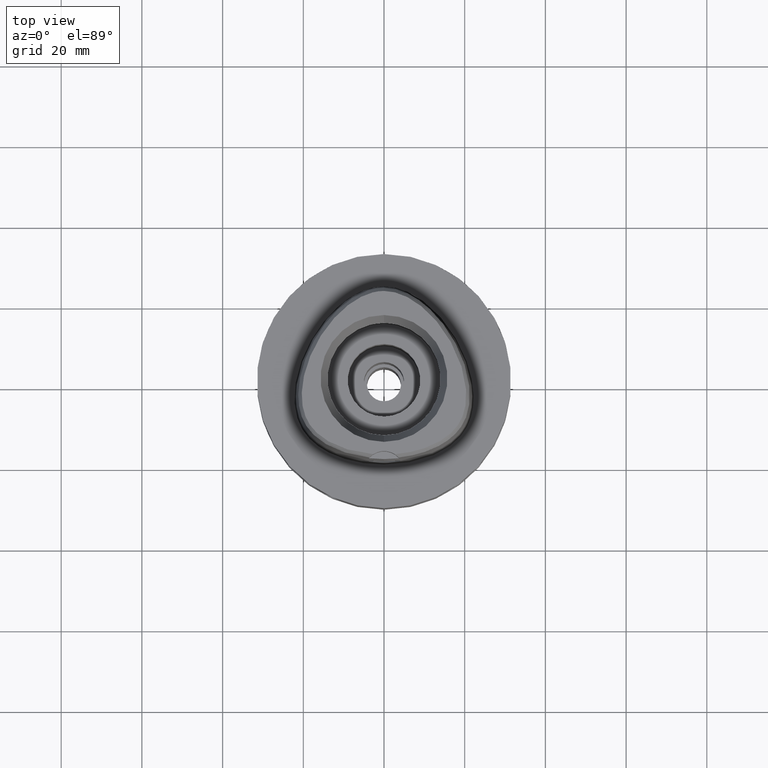
[diagram: clean part render]
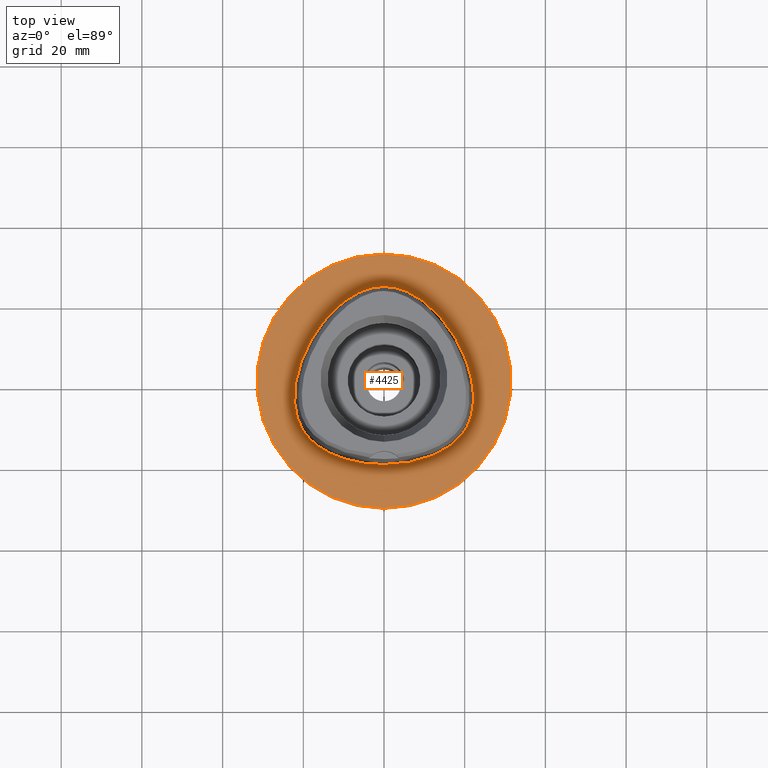
[diagram: same view with one face highlighted and labeled with its STEP entity id]
A machine part, top view. The second image highlights one B-rep face of the part: STEP entity #4425.
In plain terms, the highlighted planar face has unit normal (0, 0, -1).
Its self-contained STEP definition (entity closure, byte-faithful):
#3 = CARTESIAN_POINT ( 'NONE',  ( -20.74942740784132766, 4.657187499655770502, 4.037040778168306254E-08 ) ) ;
#48 = B_SPLINE_CURVE_WITH_KNOTS ( 'NONE', 3,
 ( #3548, #3051, #343, #697, #2707, #1922, #672, #1507, #3, #1892, #368, #3527, #1557, #5087, #4299, #1118, #2686, #775, #2334, #1065, #4277, #1533, #4702 ),
 .UNSPECIFIED., .F., .F.,
 ( 4, 1, 1, 1, 1, 1, 1, 1, 1, 1, 1, 1, 1, 1, 1, 1, 1, 1, 1, 1, 4 ),
 ( 0.0000000000000000000, 0.04166666666739000241, 0.08333333333401000964, 0.1250000000005999923, 0.1666666666673000119, 0.2500000000004999889, 0.3333333333337000215, 0.4166666666670000296, 0.5000000000002999823, 0.5416666666668999985, 0.5833333333335000148, 0.6250000000001000311, 0.6458333333333999837, 0.6666666666667999674, 0.6875000000001000311, 0.7083333333333999837, 0.7500000000000000000, 0.7916666666667000474, 0.8333333333332000326, 0.9166666666664999852, 1.000000000000000000 ),
 .UNSPECIFIED. ) ;
#152 = CIRCLE ( 'NONE', #649, 31.50000000000000000 ) ;
#191 = CIRCLE ( 'NONE', #3910, 31.50000000000000000 ) ;
#203 = CARTESIAN_POINT ( 'NONE',  ( 22.05732880139742846, -6.847636727110003818, -2.340869023712563793E-06 ) ) ;
#226 = ORIENTED_EDGE ( 'NONE', *, *, #4325, .F. ) ;
#272 = VERTEX_POINT ( 'NONE', #2648 ) ;
#343 = CARTESIAN_POINT ( 'NONE',  ( -2.564517726749317106, 23.29328124900774100, 4.037040778168306254E-08 ) ) ;
#368 = CARTESIAN_POINT ( 'NONE',  ( -22.24453907753402149, -4.100468750005525465, 4.037040778168306254E-08 ) ) ;
#561 = CARTESIAN_POINT ( 'NONE',  ( 11.23259758738402070, -18.89324224279648234, -2.340869023712563793E-06 ) ) ;
#585 = VERTEX_POINT ( 'NONE', #4396 ) ;
#649 = AXIS2_PLACEMENT_3D ( 'NONE', #1639, #4435, #3628 ) ;
#672 = CARTESIAN_POINT ( 'NONE',  ( -14.40795638880438467, 15.64093749934128397, 4.037040778168306254E-08 ) ) ;
#697 = CARTESIAN_POINT ( 'NONE',  ( -5.098437016906504304, 22.52602538968983126, 4.037040778168306254E-08 ) ) ;
#775 = CARTESIAN_POINT ( 'NONE',  ( -16.95889172530714006, -15.67838867107149881, 4.037040778168306254E-08 ) ) ;
#810 = DIRECTION ( 'NONE',  ( 0.0000000000000000000, 0.0000000000000000000, -1.000000000000000000 ) ) ;
#977 = CARTESIAN_POINT ( 'NONE',  ( 20.34961803634114474, -11.74885745118976033, -2.340869023712563793E-06 ) ) ;
#1065 = CARTESIAN_POINT ( 'NONE',  ( -11.23259756692843681, -18.89324218655475818, 4.037040778168306254E-08 ) ) ;
#1104 = B_SPLINE_CURVE_WITH_KNOTS ( 'NONE', 3,
 ( #4084, #2123, #3695, #561, #3753, #1759, #1370, #2147, #977, #2550, #4166, #203, #1784, #2202, #3899, #4689, #4209, #3067, #4665, #4286, #2275, #1936, #5098 ),
 .UNSPECIFIED., .F., .F.,
 ( 4, 1, 1, 1, 1, 1, 1, 1, 1, 1, 1, 1, 1, 1, 1, 1, 1, 1, 1, 1, 4 ),
 ( 0.0000000000000000000, 0.08333333333340001148, 0.1666666666667000196, 0.2083333333333000081, 0.2500000000000000000, 0.2916666666666999919, 0.3125000000000000000, 0.3333333333333000081, 0.3541666666666000163, 0.3749999999998999689, 0.4166666666666000163, 0.4583333333332000326, 0.4999999999998999689, 0.5833333333331000015, 0.6666666666664999852, 0.7499999999998000488, 0.8333333333329999704, 0.8749999999997000177, 0.9166666666664000651, 0.9583333333329999704, 1.000000000000000000 ),
 .UNSPECIFIED. ) ;
#1118 = CARTESIAN_POINT ( 'NONE',  ( -19.64947365781719668, -12.82525390565452916, 4.037040778168306254E-08 ) ) ;
#1292 = EDGE_CURVE ( 'NONE', #4679, #585, #48, .T. ) ;
#1303 = DIRECTION ( 'NONE',  ( 0.0000000000000000000, -1.000000000000000000, 0.0000000000000000000 ) ) ;
#1370 = CARTESIAN_POINT ( 'NONE',  ( 18.56841069404890021, -14.16937992319170192, -2.340869023712563793E-06 ) ) ;
#1444 = ORIENTED_EDGE ( 'NONE', *, *, #1292, .F. ) ;
#1507 = CARTESIAN_POINT ( 'NONE',  ( -18.06826688439351258, 10.43171874949207378, 4.037040778168306254E-08 ) ) ;
#1533 = CARTESIAN_POINT ( 'NONE',  ( -2.113823673004654236, -20.67499999898744534, 4.037040778168306254E-08 ) ) ;
#1557 = CARTESIAN_POINT ( 'NONE',  ( -21.55524825912155151, -8.996025390336564342, 4.037040778168306254E-08 ) ) ;
#1639 = CARTESIAN_POINT ( 'NONE',  ( 0.0000000000000000000, 0.0000000000000000000, 0.0000000000000000000 ) ) ;
#1664 = PLANE ( 'NONE',  #4458 ) ;
#1701 = ORIENTED_EDGE ( 'NONE', *, *, #2547, .F. ) ;
#1759 = CARTESIAN_POINT ( 'NONE',  ( 16.95889176226191353, -15.67838871807612122, -2.340869023712563793E-06 ) ) ;
#1784 = CARTESIAN_POINT ( 'NONE',  ( 22.24453913725280430, -4.100468749656040579, -2.340869023712563793E-06 ) ) ;
#1892 = CARTESIAN_POINT ( 'NONE',  ( -21.97832647686781371, -0.2810937501765858326, 4.037040778168306254E-08 ) ) ;
#1922 = CARTESIAN_POINT ( 'NONE',  ( -10.74572890993840701, 19.17433593672402026, 4.037040778168306254E-08 ) ) ;
#1936 = CARTESIAN_POINT ( 'NONE',  ( 0.8548392464551050063, 23.47500005852212723, -2.340869023712563793E-06 ) ) ;
#2005 = EDGE_LOOP ( 'NONE', ( #1444, #1701 ) ) ;
#2123 = CARTESIAN_POINT ( 'NONE',  ( 2.113823676545362851, -20.67500005851327671, -2.340869023712563369E-06 ) ) ;
#2147 = CARTESIAN_POINT ( 'NONE',  ( 19.64947370605709054, -12.82525394071629776, -2.340869023712563793E-06 ) ) ;
#2202 = CARTESIAN_POINT ( 'NONE',  ( 21.97832653580970685, -0.2810937397616486977, -2.340869023712563793E-06 ) ) ;
#2275 = CARTESIAN_POINT ( 'NONE',  ( 2.564517738985089945, 23.29328130762672089, -2.340869023712563793E-06 ) ) ;
#2334 = CARTESIAN_POINT ( 'NONE',  ( -14.67337964369453296, -17.21410156161879357, 4.037040778168306254E-08 ) ) ;
#2397 = DIRECTION ( 'NONE',  ( 0.0000000000000000000, -1.000000000000000000, 0.0000000000000000000 ) ) ;
#2547 = EDGE_CURVE ( 'NONE', #585, #4679, #1104, .T. ) ;
#2550 = CARTESIAN_POINT ( 'NONE',  ( 20.93173257567003276, -10.60431643008571889, -2.340869023712563793E-06 ) ) ;
#2636 = CARTESIAN_POINT ( 'NONE',  ( 4.711902682306999780E-11, 23.47499999999000053, 5.410486873340000012E-14 ) ) ;
#2648 = CARTESIAN_POINT ( 'NONE',  ( 0.0000000000000000000, -31.50000000000000000, 0.0000000000000000000 ) ) ;
#2686 = CARTESIAN_POINT ( 'NONE',  ( -18.56841065068974217, -14.16937988211684463, 4.037040778168306254E-08 ) ) ;
#2707 = CARTESIAN_POINT ( 'NONE',  ( -7.571159433839683039, 21.31457031162646132, 4.037040778168306254E-08 ) ) ;
#3051 = CARTESIAN_POINT ( 'NONE',  ( -0.8548392422316272166, 23.47499999899499556, 4.037040778168306916E-08 ) ) ;
#3067 = CARTESIAN_POINT ( 'NONE',  ( 10.74572894842425441, 19.17433598256371141, -2.340869023712563793E-06 ) ) ;
#3245 = DIRECTION ( 'NONE',  ( 0.0000000000000000000, 0.0000000000000000000, -1.000000000000000000 ) ) ;
#3271 = FACE_OUTER_BOUND ( 'NONE', #5099, .T. ) ;
#3274 = ORIENTED_EDGE ( 'NONE', *, *, #4108, .F. ) ;
#3324 = CARTESIAN_POINT ( 'NONE',  ( 0.0000000000000000000, 31.50000000000000000, 0.0000000000000000000 ) ) ;
#3527 = CARTESIAN_POINT ( 'NONE',  ( -22.05732874222135109, -6.847636718605737194, 4.037040778168306254E-08 ) ) ;
#3548 = CARTESIAN_POINT ( 'NONE',  ( 4.711902682306999780E-11, 23.47499999999000053, 5.410486873340000012E-14 ) ) ;
#3628 = DIRECTION ( 'NONE',  ( 0.0000000000000000000, 1.000000000000000000, 0.0000000000000000000 ) ) ;
#3671 = VERTEX_POINT ( 'NONE', #3324 ) ;
#3695 = CARTESIAN_POINT ( 'NONE',  ( 6.341471029610005417, -20.29812505792877531, -2.340869023712563793E-06 ) ) ;
#3753 = CARTESIAN_POINT ( 'NONE',  ( 14.67337967325132908, -17.21410161350732082, -2.340869023712563793E-06 ) ) ;
#3899 = CARTESIAN_POINT ( 'NONE',  ( 20.74942746415953465, 4.657187519953368771, -2.340869023712563793E-06 ) ) ;
#3910 = AXIS2_PLACEMENT_3D ( 'NONE', #4366, #810, #2397 ) ;
#4084 = CARTESIAN_POINT ( 'NONE',  ( -8.195363823264001254E-12, -20.67499999999999716, 5.695444116326998779E-14 ) ) ;
#4108 = EDGE_CURVE ( 'NONE', #272, #3671, #191, .T. ) ;
#4166 = CARTESIAN_POINT ( 'NONE',  ( 21.55524831638515693, -8.996025407356324166, -2.340869023712563793E-06 ) ) ;
#4209 = CARTESIAN_POINT ( 'NONE',  ( 14.40795643454458386, 15.64093753797241426, -2.340869023712563793E-06 ) ) ;
#4277 = CARTESIAN_POINT ( 'NONE',  ( -6.341471019032020706, -20.29812499900606326, 4.037040778168306254E-08 ) ) ;
#4286 = CARTESIAN_POINT ( 'NONE',  ( 5.098437039127393433, 22.52602544519114147, -2.340869023712563793E-06 ) ) ;
#4299 = CARTESIAN_POINT ( 'NONE',  ( -20.34961798469859673, -11.74885742136693523, 4.037040778168306254E-08 ) ) ;
#4325 = EDGE_CURVE ( 'NONE', #3671, #272, #152, .T. ) ;
#4366 = CARTESIAN_POINT ( 'NONE',  ( 0.0000000000000000000, 0.0000000000000000000, 0.0000000000000000000 ) ) ;
#4396 = CARTESIAN_POINT ( 'NONE',  ( -8.195363823264001254E-12, -20.67499999999999716, 5.695444116326998779E-14 ) ) ;
#4425 = ADVANCED_FACE ( 'NONE', ( #3271, #4859 ), #1664, .F. ) ;
#4435 = DIRECTION ( 'NONE',  ( 0.0000000000000000000, 0.0000000000000000000, -1.000000000000000000 ) ) ;
#4458 = AXIS2_PLACEMENT_3D ( 'NONE', #4761, #3245, #1303 ) ;
#4665 = CARTESIAN_POINT ( 'NONE',  ( 7.571159463999694417, 21.31457036315773124, -2.340869023712563793E-06 ) ) ;
#4679 = VERTEX_POINT ( 'NONE', #2636 ) ;
#4689 = CARTESIAN_POINT ( 'NONE',  ( 18.06826693619926516, 10.43171877940945613, -2.340869023712563793E-06 ) ) ;
#4702 = CARTESIAN_POINT ( 'NONE',  ( -8.195363823264001254E-12, -20.67499999999999716, 5.695444116326998779E-14 ) ) ;
#4761 = CARTESIAN_POINT ( 'NONE',  ( 0.0000000000000000000, 0.0000000000000000000, 0.0000000000000000000 ) ) ;
#4859 = FACE_BOUND ( 'NONE', #2005, .T. ) ;
#5087 = CARTESIAN_POINT ( 'NONE',  ( -20.93173252118929284, -10.60431640584759982, 4.037040778168306254E-08 ) ) ;
#5098 = CARTESIAN_POINT ( 'NONE',  ( 4.711902682306999780E-11, 23.47499999999000053, 5.410486873340000012E-14 ) ) ;
#5099 = EDGE_LOOP ( 'NONE', ( #226, #3274 ) ) ;